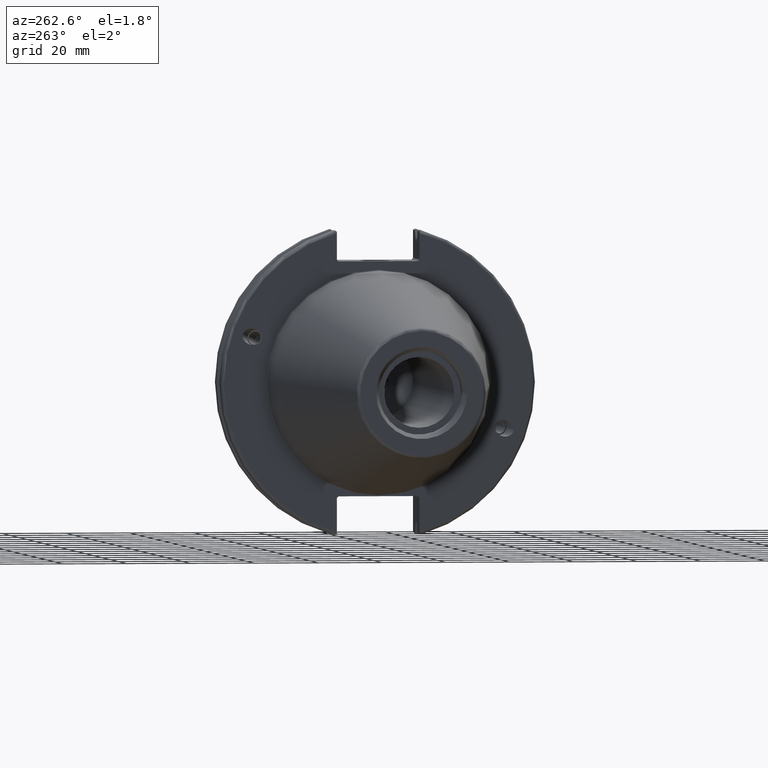
[diagram: clean part render]
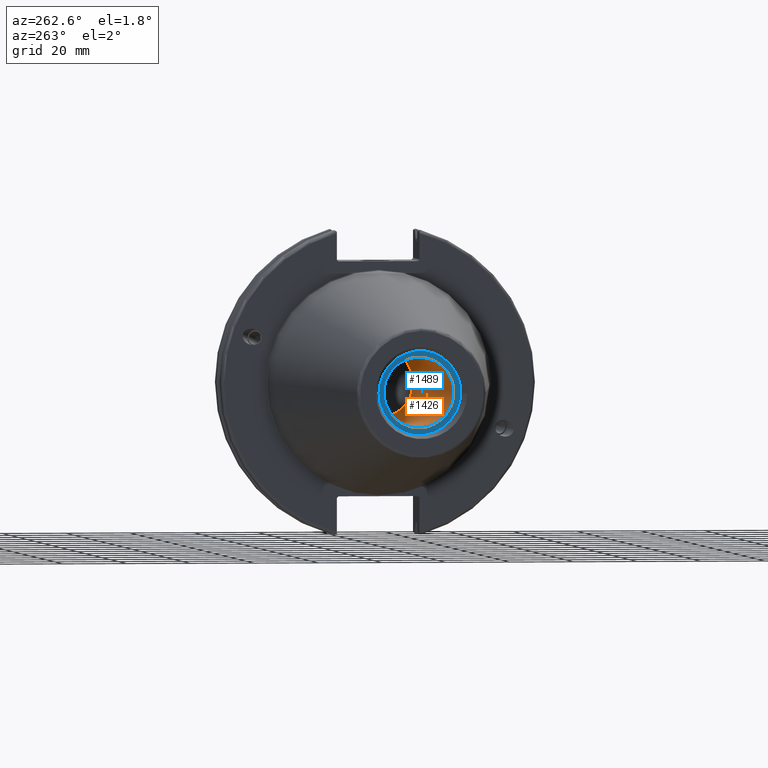
[diagram: same view with the hole feature highlighted: cylindrical wall and planar end face, labeled with their STEP entity ids]
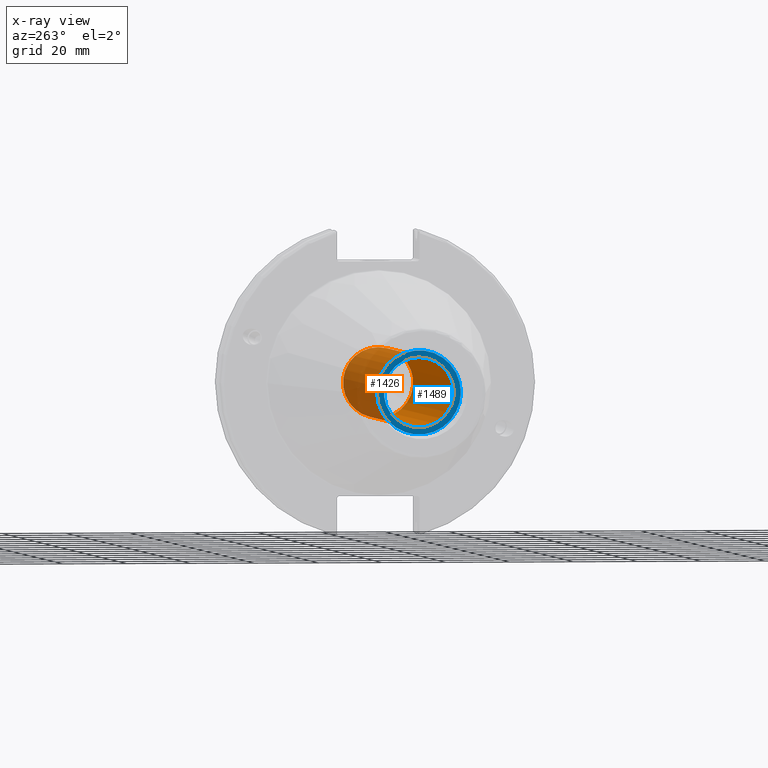
[diagram: x-ray of the same camera — body ghosted, the hole faces saturated]
A machine part, auxiliary view. The highlighted faces form one hole feature of diameter 21.971 mm: the cylindrical wall (entity #1426, orange) and its adjacent planar end face (entity #1489, blue) — they share a circular edge in the B-rep.
The next image is the same camera in x-ray (body ghosted, the hole faces saturated) — the bore reads through the body.
Wall:
#75=CYLINDRICAL_SURFACE('',#1551,10.9855);
#168=LINE('',#2238,#260);
#260=VECTOR('',#1762,10.9855);
#360=FACE_OUTER_BOUND('',#447,.T.);
#447=EDGE_LOOP('',(#1033,#1034,#1035,#1036));
#550=CIRCLE('',#1550,10.9855);
#551=CIRCLE('',#1552,10.9855);
#633=VERTEX_POINT('',#2232);
#634=VERTEX_POINT('',#2236);
#788=EDGE_CURVE('',#633,#633,#550,.T.);
#790=EDGE_CURVE('',#634,#634,#551,.T.);
#791=EDGE_CURVE('',#634,#633,#168,.T.);
#1033=ORIENTED_EDGE('',*,*,#790,.F.);
#1034=ORIENTED_EDGE('',*,*,#791,.T.);
#1035=ORIENTED_EDGE('',*,*,#788,.F.);
#1036=ORIENTED_EDGE('',*,*,#791,.F.);
#1426=ADVANCED_FACE('',(#360),#75,.F.);
#1550=AXIS2_PLACEMENT_3D('',#2233,#1755,#1756);
#1551=AXIS2_PLACEMENT_3D('',#2235,#1758,#1759);
#1552=AXIS2_PLACEMENT_3D('',#2237,#1760,#1761);
#1755=DIRECTION('center_axis',(-1.,0.,0.));
#1756=DIRECTION('ref_axis',(0.,0.,1.));
#1758=DIRECTION('center_axis',(-1.,0.,0.));
#1759=DIRECTION('ref_axis',(0.,0.,1.));
#1760=DIRECTION('center_axis',(1.,0.,0.));
#1761=DIRECTION('ref_axis',(0.,0.,1.));
#1762=DIRECTION('',(1.,0.,0.));
#2232=CARTESIAN_POINT('',(3.4,-1.34533574120333E-15,-10.9855));
#2233=CARTESIAN_POINT('Origin',(3.4,0.,0.));
#2235=CARTESIAN_POINT('Origin',(-49.1,0.,0.));
#2236=CARTESIAN_POINT('',(-95.25,1.34533574120333E-15,-10.9855));
#2237=CARTESIAN_POINT('Origin',(-95.25,0.,0.));
#2238=CARTESIAN_POINT('',(-49.1,-1.34533574120333E-15,-10.9855));
End face:
#114=FACE_BOUND('',#524,.T.);
#147=PLANE('',#1663);
#423=FACE_OUTER_BOUND('',#523,.T.);
#523=EDGE_LOOP('',(#1372));
#524=EDGE_LOOP('',(#1373));
#551=CIRCLE('',#1552,10.9855);
#598=CIRCLE('',#1664,13.1);
#634=VERTEX_POINT('',#2236);
#747=VERTEX_POINT('',#2986);
#790=EDGE_CURVE('',#634,#634,#551,.T.);
#960=EDGE_CURVE('',#747,#747,#598,.T.);
#1372=ORIENTED_EDGE('',*,*,#960,.F.);
#1373=ORIENTED_EDGE('',*,*,#790,.T.);
#1489=ADVANCED_FACE('',(#423,#114),#147,.T.);
#1552=AXIS2_PLACEMENT_3D('',#2237,#1760,#1761);
#1663=AXIS2_PLACEMENT_3D('',#2985,#2053,#2054);
#1664=AXIS2_PLACEMENT_3D('',#2987,#2055,#2056);
#1760=DIRECTION('center_axis',(1.,0.,0.));
#1761=DIRECTION('ref_axis',(0.,0.,1.));
#2053=DIRECTION('center_axis',(-1.,0.,0.));
#2054=DIRECTION('ref_axis',(0.,0.,1.));
#2055=DIRECTION('center_axis',(1.,0.,0.));
#2056=DIRECTION('ref_axis',(0.,0.,-1.));
#2236=CARTESIAN_POINT('',(-95.25,1.34533574120333E-15,-10.9855));
#2237=CARTESIAN_POINT('Origin',(-95.25,0.,0.));
#2985=CARTESIAN_POINT('Origin',(-95.25,13.1,0.));
#2986=CARTESIAN_POINT('',(-95.25,-13.1,-1.60428730688303E-15));
#2987=CARTESIAN_POINT('Origin',(-95.25,0.,0.));